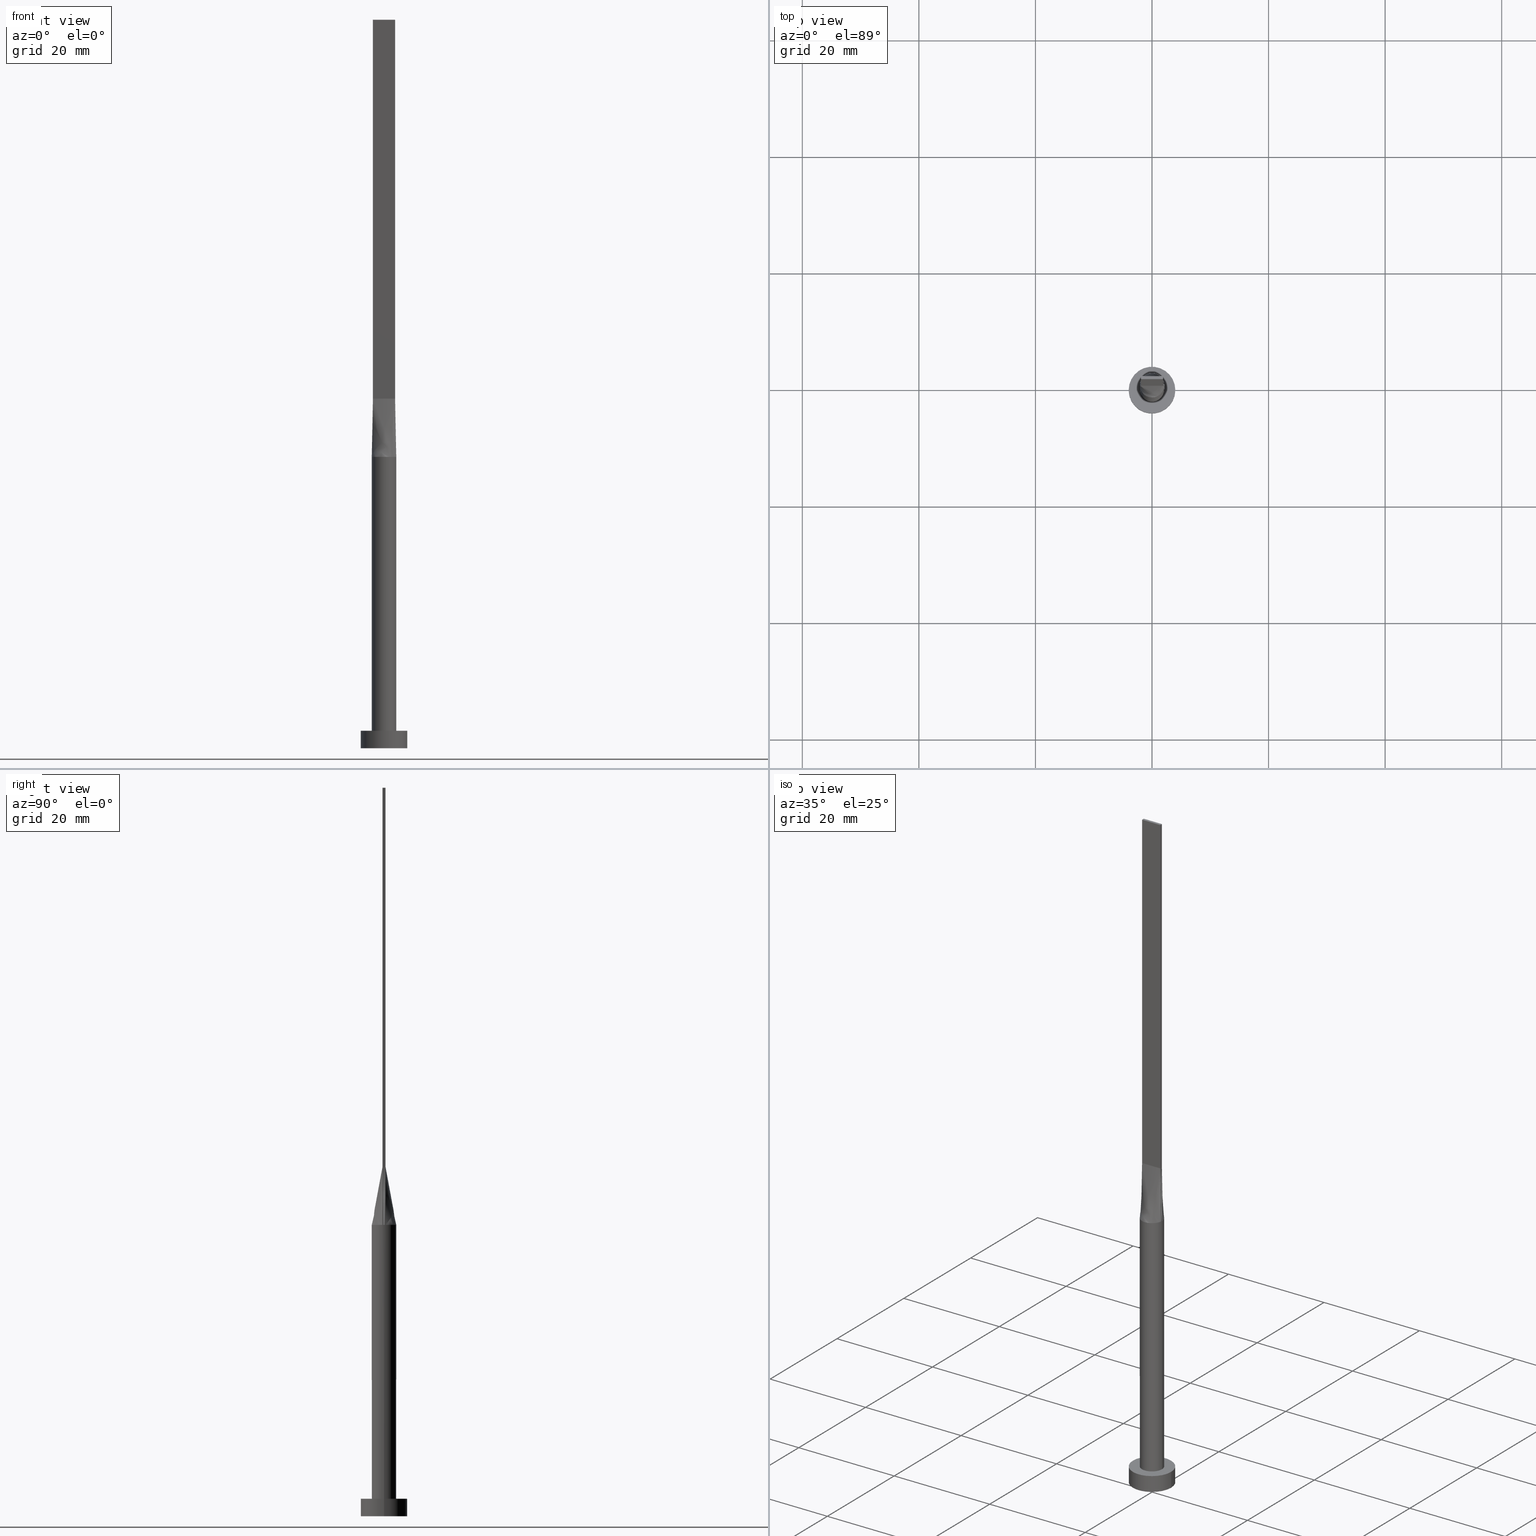
[diagram: canonical four-view strip — front | top / right | iso, engineering-drawing reading convention]
A machine part, canonical four-view strip (front | top / right | iso — engineering-drawing reading convention). The complete STEP part file that produces these views, byte-faithful:
ISO-10303-21;
HEADER;
FILE_DESCRIPTION (( 'STEP AP203' ),
    '1' );
FILE_NAME ('ba8a.STEP',
    '2026-02-12T09:05:40',
    ( '' ),
    ( '' ),
    'SwSTEP 2.0',
    'SolidWorks 2019',
    '' );
FILE_SCHEMA (( 'CONFIG_CONTROL_DESIGN' ));
ENDSEC;

DATA;
#1 = CARTESIAN_POINT ( 'NONE',  ( 2.013179673790353341, 0.6348343983169372207, 49.99999999999998579 ) ) ;
#2 = EDGE_CURVE ( 'NONE', #190, #438, #159, .T. ) ;
#3 = CARTESIAN_POINT ( 'NONE',  ( -1.719140910005030998, -1.233222546295087652, 49.99999999999999289 ) ) ;
#4 = ORIENTED_EDGE ( 'NONE', *, *, #545, .F. ) ;
#5 = CARTESIAN_POINT ( 'NONE',  ( -1.899999999999999689, 0.08333333333333366177, 60.00000000000000000 ) ) ;
#6 = CARTESIAN_POINT ( 'NONE',  ( 1.144666002056101028, -1.784802689656028507, 50.00000000000000000 ) ) ;
#7 = DIRECTION ( 'NONE',  ( -0.000000000000000000, -0.000000000000000000, -1.000000000000000000 ) ) ;
#8 = CARTESIAN_POINT ( 'NONE',  ( -1.899999999999999911, -0.2499999999999995837, 60.00000000000000711 ) ) ;
#9 = ADVANCED_FACE ( 'NONE', ( #566 ), #49, .T. ) ;
#10 = ORIENTED_EDGE ( 'NONE', *, *, #102, .T. ) ;
#11 = CIRCLE ( 'NONE', #335, 4.000000000000000000 ) ;
#12 = FACE_OUTER_BOUND ( 'NONE', #434, .T. ) ;
#13 = ORIENTED_EDGE ( 'NONE', *, *, #182, .F. ) ;
#14 = LINE ( 'NONE', #547, #454 ) ;
#15 = DIRECTION ( 'NONE',  ( 1.734723475976807094E-15, 1.000000000000000000, 0.000000000000000000 ) ) ;
#16 = CARTESIAN_POINT ( 'NONE',  ( 1.719140910005030110, 1.233222546295088762, 49.99999999999999289 ) ) ;
#17 = CARTESIAN_POINT ( 'NONE',  ( 1.899999999999999911, 0.2500000000000002220, 125.0000000000000000 ) ) ;
#18 = CARTESIAN_POINT ( 'NONE',  ( 0.000000000000000000, 0.000000000000000000, 0.000000000000000000 ) ) ;
#19 = ORIENTED_EDGE ( 'NONE', *, *, #226, .T. ) ;
#20 = DIRECTION ( 'NONE',  ( 0.000000000000000000, -1.000000000000000000, 0.000000000000000000 ) ) ;
#21 = CARTESIAN_POINT ( 'NONE',  ( -2.082054020639342529, 0.2739544763999127719, 50.00000000000000000 ) ) ;
#22 = AXIS2_PLACEMENT_3D ( 'NONE', #72, #562, #113 ) ;
#23 = CARTESIAN_POINT ( 'NONE',  ( -1.899999999999999911, -0.2499999999999995837, 125.0000000000000000 ) ) ;
#24 = CARTESIAN_POINT ( 'NONE',  ( 1.899999999999999689, -0.1666666666666664631, 60.00000000000000000 ) ) ;
#25 = DIRECTION ( 'NONE',  ( -0.000000000000000000, -0.000000000000000000, -1.000000000000000000 ) ) ;
#26 = CARTESIAN_POINT ( 'NONE',  ( -1.719140910005030554, 1.233222546295088762, 49.99999999999997868 ) ) ;
#27 = DIRECTION ( 'NONE',  ( -1.000000000000000000, 5.706327223607920020E-17, 0.000000000000000000 ) ) ;
#28 = ADVANCED_FACE ( 'NONE', ( #581 ), #273, .T. ) ;
#29 = APPLICATION_PROTOCOL_DEFINITION ( 'international standard', 'config_control_design', 1994, #321 ) ;
#30 = VERTEX_POINT ( 'NONE', #291 ) ;
#31 = ORIENTED_EDGE ( 'NONE', *, *, #406, .F. ) ;
#32 = VERTEX_POINT ( 'NONE', #65 ) ;
#33 = DATE_AND_TIME ( #433, #533 ) ;
#34 = EDGE_CURVE ( 'NONE', #30, #196, #395, .T. ) ;
#35 = ORIENTED_EDGE ( 'NONE', *, *, #34, .T. ) ;
#36 = ORIENTED_EDGE ( 'NONE', *, *, #455, .F. ) ;
#37 = CARTESIAN_POINT ( 'NONE',  ( -2.093966886534509353, 0.1834166955966458346, 50.00000000000000000 ) ) ;
#38 = CC_DESIGN_PERSON_AND_ORGANIZATION_ASSIGNMENT ( #162, #569, ( #279 ) ) ;
#39 = ORGANIZATION ( 'NEUR�EN�', 'NEUR�EN�', '' ) ;
#40 = VERTEX_POINT ( 'NONE', #68 ) ;
#41 = CARTESIAN_POINT ( 'NONE',  ( -1.583333333333332371, -0.2499999999999995837, 60.00000000000000000 ) ) ;
#42 = VECTOR ( 'NONE', #466, 1000.000000000000000 ) ;
#43 = DATE_TIME_ROLE ( 'classification_date' ) ;
#44 = ORIENTED_EDGE ( 'NONE', *, *, #500, .F. ) ;
#45 = CARTESIAN_POINT ( 'NONE',  ( 2.082054020639342085, -0.2739544763999143262, 50.00000000000000000 ) ) ;
#46 = CARTESIAN_POINT ( 'NONE',  ( -2.099923319482092765, 0.09170834779832304218, 50.00000000000000000 ) ) ;
#47 = ORIENTED_EDGE ( 'NONE', *, *, #184, .T. ) ;
#48 = AXIS2_PLACEMENT_3D ( 'NONE', #209, #254, #504 ) ;
#49 = B_SPLINE_SURFACE_WITH_KNOTS ( 'NONE', 3, 1, ( 
 ( #525, #311 ),
 ( #478, #83 ),
 ( #439, #41 ),
 ( #231, #490 ),
 ( #3, #539 ),
 ( #96, #404 ),
 ( #137, #234 ),
 ( #52, #86 ),
 ( #93, #495 ),
 ( #398, #444 ),
 ( #320, #100 ),
 ( #6, #236 ),
 ( #449, #269 ),
 ( #272, #55 ),
 ( #488, #447 ),
 ( #229, #192 ),
 ( #537, #271 ),
 ( #45, #409 ) ),
 .UNSPECIFIED., .F., .F., .F.,
 ( 4, 2, 2, 2, 2, 2, 2, 2, 4 ),
 ( 2, 2 ),
 ( 0.000000000000000000, 0.1249999999999999722, 0.2500000000000000000, 0.3750000000000000000, 0.5000000000000000000, 0.6250000000000001110, 0.7500000000000000000, 0.8750000000000000000, 1.000000000000000000 ),
 ( 0.000000000000000000, 1.000000000000000000 ),
 .UNSPECIFIED. ) ;
#50 = EDGE_LOOP ( 'NONE', ( #203, #164, #151, #130, #427, #396 ) ) ;
#51 = VECTOR ( 'NONE', #551, 1000.000000000000000 ) ;
#52 = CARTESIAN_POINT ( 'NONE',  ( -0.6126365619873365143, -2.029890967560283865, 49.99999999999999289 ) ) ;
#53 = CARTESIAN_POINT ( 'NONE',  ( -1.899999999999999911, 0.2500000000000002220, 60.00000000000000711 ) ) ;
#54 = CARTESIAN_POINT ( 'NONE',  ( -2.082054020639342529, -0.2739544763999126609, 50.00000000000000000 ) ) ;
#55 = CARTESIAN_POINT ( 'NONE',  ( 1.108333333333334059, -0.2499999999999996669, 60.00000000000000000 ) ) ;
#56 = EDGE_CURVE ( 'NONE', #443, #295, #288, .T. ) ;
#57 = CARTESIAN_POINT ( 'NONE',  ( 0.000000000000000000, 0.000000000000000000, 50.00000000000000000 ) ) ;
#58 = AXIS2_PLACEMENT_3D ( 'NONE', #358, #237, #496 ) ;
#59 = DIRECTION ( 'NONE',  ( 1.000000000000000000, 0.000000000000000000, 0.000000000000000000 ) ) ;
#60 = CARTESIAN_POINT ( 'NONE',  ( 2.082200219287980492, 0.2739732417105839035, 50.00000000000000000 ) ) ;
#61 = ORIENTED_EDGE ( 'NONE', *, *, #455, .T. ) ;
#62 = CARTESIAN_POINT ( 'NONE',  ( -1.266666666666667718, 0.2500000000000002220, 60.00000000000000000 ) ) ;
#63 = LINE ( 'NONE', #513, #561 ) ;
#64 = EDGE_LOOP ( 'NONE', ( #482, #470, #163, #94 ) ) ;
#65 = CARTESIAN_POINT ( 'NONE',  ( -1.899999999999999911, -0.2499999999999995837, 60.00000000000000711 ) ) ;
#66 = AXIS2_PLACEMENT_3D ( 'NONE', #349, #420, #384 ) ;
#67 = PLANE ( 'NONE',  #48 ) ;
#68 = CARTESIAN_POINT ( 'NONE',  ( 1.899999999999999911, 0.2500000000000002220, 60.00000000000000711 ) ) ;
#69 = CARTESIAN_POINT ( 'NONE',  ( -1.144666002056102361, 1.784802689656027619, 50.00000000000000711 ) ) ;
#70 = DIRECTION ( 'NONE',  ( 0.000000000000000000, 0.000000000000000000, 1.000000000000000000 ) ) ;
#71 = ADVANCED_FACE ( 'NONE', ( #257 ), #148, .F. ) ;
#72 = CARTESIAN_POINT ( 'NONE',  ( 0.000000000000000000, 0.000000000000000000, 50.00000000000000000 ) ) ;
#73 = CARTESIAN_POINT ( 'NONE',  ( 0.6126365619873356261, 2.029890967560284754, 50.00000000000001421 ) ) ;
#74 = LINE ( 'NONE', #375, #535 ) ;
#75 = ORIENTED_EDGE ( 'NONE', *, *, #325, .T. ) ;
#76 = APPROVAL_STATUS ( 'not_yet_approved' ) ;
#77 = ORIENTED_EDGE ( 'NONE', *, *, #115, .F. ) ;
#78 = VECTOR ( 'NONE', #492, 1000.000000000000000 ) ;
#79 = APPROVAL_STATUS ( 'not_yet_approved' ) ;
#80 = ORIENTED_EDGE ( 'NONE', *, *, #461, .T. ) ;
#81 = APPROVAL_ROLE ( '' ) ;
#82 = ORIENTED_EDGE ( 'NONE', *, *, #184, .F. ) ;
#83 = CARTESIAN_POINT ( 'NONE',  ( -1.741666666666666252, -0.2499999999999995837, 60.00000000000000000 ) ) ;
#84 =( NAMED_UNIT ( * ) PLANE_ANGLE_UNIT ( ) SI_UNIT ( $, .RADIAN. ) );
#85 = ORIENTED_EDGE ( 'NONE', *, *, #423, .T. ) ;
#86 = CARTESIAN_POINT ( 'NONE',  ( -0.3166666666666646535, -0.2499999999999995837, 60.00000000000000000 ) ) ;
#87 = AXIS2_PLACEMENT_3D ( 'NONE', #235, #450, #363 ) ;
#88 = CARTESIAN_POINT ( 'NONE',  ( -0.3069641454662043190, 2.100000000000000533, 50.00000000000001421 ) ) ;
#89 = APPROVAL_ROLE ( '' ) ;
#90 = ADVANCED_FACE ( 'NONE', ( #330 ), #340, .F. ) ;
#91 = CARTESIAN_POINT ( 'NONE',  ( -0.1583333333333351578, 0.2500000000000002220, 60.00000000000000000 ) ) ;
#92 = CARTESIAN_POINT ( 'NONE',  ( 1.899999999999999911, 0.2500000000000002220, 60.00000000000000711 ) ) ;
#93 = CARTESIAN_POINT ( 'NONE',  ( -0.3069641454662052071, -2.100000000000000089, 50.00000000000000711 ) ) ;
#94 = ORIENTED_EDGE ( 'NONE', *, *, #338, .T. ) ;
#95 = DIRECTION ( 'NONE',  ( 1.000000000000000000, -5.706327223607918787E-17, 0.000000000000000000 ) ) ;
#96 = CARTESIAN_POINT ( 'NONE',  ( -1.370324685961210820, -1.611984358543462337, 50.00000000000000711 ) ) ;
#97 = VECTOR ( 'NONE', #233, 1000.000000000000000 ) ;
#98 = ADVANCED_FACE ( 'NONE', ( #515 ), #331, .F. ) ;
#99 = CARTESIAN_POINT ( 'NONE',  ( -4.000000000000000000, 0.000000000000000000, 3.000000000000000000 ) ) ;
#100 = CARTESIAN_POINT ( 'NONE',  ( 0.3166666666666686503, -0.2499999999999996669, 60.00000000000000000 ) ) ;
#101 = CYLINDRICAL_SURFACE ( 'NONE', #329, 2.100000000000000089 ) ;
#102 = EDGE_CURVE ( 'NONE', #295, #40, #471, .T. ) ;
#103 = LINE ( 'NONE', #145, #403 ) ;
#104 = CIRCLE ( 'NONE', #193, 2.100000000000000089 ) ;
#105 = PRODUCT ( 'ba8a', 'ba8a', '', ( #299 ) ) ;
#106 = CARTESIAN_POINT ( 'NONE',  ( 2.100000000000000089, 2.571758278209441957E-16, 3.000000000000000000 ) ) ;
#107 = DIRECTION ( 'NONE',  ( 0.000000000000000000, 0.000000000000000000, 1.000000000000000000 ) ) ;
#108 =( LENGTH_UNIT ( ) NAMED_UNIT ( * ) SI_UNIT ( .MILLI., .METRE. ) );
#109 = ORIENTED_EDGE ( 'NONE', *, *, #198, .F. ) ;
#110 = CARTESIAN_POINT ( 'NONE',  ( -2.013179673790353341, 0.6348343983169374427, 49.99999999999999289 ) ) ;
#111 = FACE_OUTER_BOUND ( 'NONE', #346, .T. ) ;
#112 = CC_DESIGN_APPROVAL ( #253, ( #279 ) ) ;
#113 = DIRECTION ( 'NONE',  ( 1.000000000000000000, 0.000000000000000000, 0.000000000000000000 ) ) ;
#114 = VECTOR ( 'NONE', #290, 1000.000000000000000 ) ;
#115 = EDGE_CURVE ( 'NONE', #438, #40, #170, .T. ) ;
#116 = DIRECTION ( 'NONE',  ( 5.706327223607920020E-17, 1.000000000000000000, -0.000000000000000000 ) ) ;
#117 = DIRECTION ( 'NONE',  ( -0.000000000000000000, -0.000000000000000000, -1.000000000000000000 ) ) ;
#118 = VERTEX_POINT ( 'NONE', #389 ) ;
#119 = DATE_AND_TIME ( #166, #221 ) ;
#120 = EDGE_LOOP ( 'NONE', ( #125, #80, #44, #77 ) ) ;
#121 = ORIENTED_EDGE ( 'NONE', *, *, #102, .F. ) ;
#122 = CC_DESIGN_SECURITY_CLASSIFICATION ( #238, ( #402 ) ) ;
#123 = PERSON_AND_ORGANIZATION ( #540, #39 ) ;
#124 = CIRCLE ( 'NONE', #58, 4.000000000000000000 ) ;
#125 = ORIENTED_EDGE ( 'NONE', *, *, #376, .T. ) ;
#126 = CARTESIAN_POINT ( 'NONE',  ( 1.899999999999999911, -0.2499999999999997780, 60.00000000000000711 ) ) ;
#127 = APPROVAL_DATE_TIME ( #33, #408 ) ;
#128 = CARTESIAN_POINT ( 'NONE',  ( 0.000000000000000000, 0.000000000000000000, 125.0000000000000000 ) ) ;
#129 = PERSON_AND_ORGANIZATION ( #540, #39 ) ;
#130 = ORIENTED_EDGE ( 'NONE', *, *, #133, .F. ) ;
#131 = CALENDAR_DATE ( 2026, 12, 2 ) ;
#132 = APPROVAL_PERSON_ORGANIZATION ( #564, #464, #519 ) ;
#133 = EDGE_CURVE ( 'NONE', #196, #520, #483, .T. ) ;
#134 = AXIS2_PLACEMENT_3D ( 'NONE', #368, #476, #301 ) ;
#135 = CARTESIAN_POINT ( 'NONE',  ( -4.000000000000000000, 0.000000000000000000, 0.000000000000000000 ) ) ;
#136 = CARTESIAN_POINT ( 'NONE',  ( -1.899999999999999689, -0.1666666666666662411, 60.00000000000000000 ) ) ;
#137 = CARTESIAN_POINT ( 'NONE',  ( -1.144666002056103249, -1.784802689656026953, 50.00000000000000000 ) ) ;
#138 = ADVANCED_FACE ( 'NONE', ( #212 ), #187, .T. ) ;
#139 = ADVANCED_FACE ( 'NONE', ( #487 ), #577, .T. ) ;
#140 = ORIENTED_EDGE ( 'NONE', *, *, #56, .F. ) ;
#141 = CARTESIAN_POINT ( 'NONE',  ( -1.899999999999999911, 0.2500000000000002220, 125.0000000000000000 ) ) ;
#142 = CARTESIAN_POINT ( 'NONE',  ( 0.000000000000000000, 0.000000000000000000, 50.00000000000000000 ) ) ;
#143 = PLANE ( 'NONE',  #213 ) ;
#144 = CARTESIAN_POINT ( 'NONE',  ( -1.899999999999999911, 0.2500000000000002220, 125.0000000000000000 ) ) ;
#145 = CARTESIAN_POINT ( 'NONE',  ( 1.899999999999999023, -0.2499999999999997780, 125.0000000000000000 ) ) ;
#146 = CARTESIAN_POINT ( 'NONE',  ( -1.899999999999999689, -0.08333333333333294013, 60.00000000000000000 ) ) ;
#147 = DIRECTION ( 'NONE',  ( -1.000000000000000000, -0.000000000000000000, -0.000000000000000000 ) ) ;
#148 = PLANE ( 'NONE',  #175 ) ;
#149 = CIRCLE ( 'NONE', #281, 2.100000000000000089 ) ;
#150 = DIRECTION ( 'NONE',  ( 0.000000000000000000, 0.000000000000000000, 1.000000000000000000 ) ) ;
#151 = ORIENTED_EDGE ( 'NONE', *, *, #325, .F. ) ;
#152 = DIRECTION ( 'NONE',  ( 0.000000000000000000, -0.000000000000000000, -1.000000000000000000 ) ) ;
#153 = CARTESIAN_POINT ( 'NONE',  ( 0.000000000000000000, 0.000000000000000000, 0.000000000000000000 ) ) ;
#154 = CARTESIAN_POINT ( 'NONE',  ( 1.899999999999999911, 0.2500000000000002220, 125.0000000000000000 ) ) ;
#155 = DIRECTION ( 'NONE',  ( 0.000000000000000000, 0.000000000000000000, 1.000000000000000000 ) ) ;
#156 = ADVANCED_FACE ( 'NONE', ( #526 ), #399, .T. ) ;
#157 = CARTESIAN_POINT ( 'NONE',  ( 2.099923319482092765, 0.09170834779832297279, 50.00000000000000000 ) ) ;
#158 = DIRECTION ( 'NONE',  ( 0.000000000000000000, 0.000000000000000000, 1.000000000000000000 ) ) ;
#159 = CIRCLE ( 'NONE', #66, 2.100000000000000089 ) ;
#160 = DIRECTION ( 'NONE',  ( -1.000000000000000000, 0.000000000000000000, 0.000000000000000000 ) ) ;
#161 = DIRECTION ( 'NONE',  ( 1.000000000000000000, 0.000000000000000000, -0.000000000000000000 ) ) ;
#162 = PERSON_AND_ORGANIZATION ( #540, #39 ) ;
#163 = ORIENTED_EDGE ( 'NONE', *, *, #406, .T. ) ;
#164 = ORIENTED_EDGE ( 'NONE', *, *, #350, .F. ) ;
#165 = CYLINDRICAL_SURFACE ( 'NONE', #361, 2.100000000000000089 ) ;
#166 = CALENDAR_DATE ( 2026, 12, 2 ) ;
#167 = ORIENTED_EDGE ( 'NONE', *, *, #563, .F. ) ;
#168 = VERTEX_POINT ( 'NONE', #498 ) ;
#169 = LOCAL_TIME ( 10, 5, 40.00000000000000000, #304 ) ;
#170 = LINE ( 'NONE', #219, #553 ) ;
#171 = CARTESIAN_POINT ( 'NONE',  ( -1.370324685961209266, 1.611984358543462559, 50.00000000000000000 ) ) ;
#172 = ADVANCED_BREP_SHAPE_REPRESENTATION ( 'ba8a', ( #479, #543 ), #360 ) ;
#173 = PERSON_AND_ORGANIZATION ( #540, #39 ) ;
#174 = ORIENTED_EDGE ( 'NONE', *, *, #278, .T. ) ;
#175 = AXIS2_PLACEMENT_3D ( 'NONE', #557, #161, #297 ) ;
#176 = CARTESIAN_POINT ( 'NONE',  ( -1.899999999999999689, 0.1666666666666669350, 60.00000000000000000 ) ) ;
#177 = DIRECTION ( 'NONE',  ( -1.000000000000000000, 0.000000000000000000, 0.000000000000000000 ) ) ;
#178 = APPROVAL_DATE_TIME ( #531, #464 ) ;
#179 = EDGE_LOOP ( 'NONE', ( #19, #473 ) ) ;
#180 = ORIENTED_EDGE ( 'NONE', *, *, #240, .T. ) ;
#181 = CARTESIAN_POINT ( 'NONE',  ( 0.1583333333333314663, 0.2500000000000002220, 60.00000000000000000 ) ) ;
#182 = EDGE_CURVE ( 'NONE', #458, #32, #191, .T. ) ;
#183 = CARTESIAN_POINT ( 'NONE',  ( 2.082054020639342529, 0.2739544763999133825, 50.00000000000000000 ) ) ;
#184 = EDGE_CURVE ( 'NONE', #300, #251, #14, .T. ) ;
#185 = CC_DESIGN_APPROVAL ( #464, ( #402 ) ) ;
#186 = CARTESIAN_POINT ( 'NONE',  ( 1.583333333333331927, 0.2500000000000002220, 60.00000000000000711 ) ) ;
#187 = B_SPLINE_SURFACE_WITH_KNOTS ( 'NONE', 3, 1, ( 
 ( #522, #126 ),
 ( #307, #24 ),
 ( #206, #374 ),
 ( #157, #436 ),
 ( #264, #222 ),
 ( #317, #92 ) ),
 .UNSPECIFIED., .F., .F., .F.,
 ( 4, 2, 4 ),
 ( 2, 2 ),
 ( 0.000000000000000000, 0.5000000000000000000, 1.000000000000000000 ),
 ( 0.000000000000000000, 1.000000000000000000 ),
 .UNSPECIFIED. ) ;
#188 = AXIS2_PLACEMENT_3D ( 'NONE', #372, #116, #27 ) ;
#189 = CARTESIAN_POINT ( 'NONE',  ( 2.059419575438525385, 0.4459762599261217764, 50.00000000000000711 ) ) ;
#190 = VERTEX_POINT ( 'NONE', #544 ) ;
#191 = LINE ( 'NONE', #53, #97 ) ;
#192 = CARTESIAN_POINT ( 'NONE',  ( 1.583333333333333037, -0.2499999999999997224, 60.00000000000000000 ) ) ;
#193 = AXIS2_PLACEMENT_3D ( 'NONE', #256, #70, #508 ) ;
#194 = PRODUCT_DEFINITION_SHAPE ( 'NONE', 'NONE',  #279 ) ;
#195 = DIRECTION ( 'NONE',  ( -0.000000000000000000, -0.000000000000000000, -1.000000000000000000 ) ) ;
#196 = VERTEX_POINT ( 'NONE', #275 ) ;
#197 = DIRECTION ( 'NONE',  ( 1.000000000000000000, -2.131628207280300558E-14, 0.000000000000000000 ) ) ;
#198 = EDGE_CURVE ( 'NONE', #514, #300, #274, .T. ) ;
#199 = LINE ( 'NONE', #154, #452 ) ;
#200 = CARTESIAN_POINT ( 'NONE',  ( 1.899999999999999023, -0.2499999999999997780, 125.0000000000000000 ) ) ;
#201 = CARTESIAN_POINT ( 'NONE',  ( -2.059419575438525385, 0.4459762599261216653, 50.00000000000000711 ) ) ;
#202 = CARTESIAN_POINT ( 'NONE',  ( 0.000000000000000000, 0.000000000000000000, 3.000000000000000000 ) ) ;
#203 = ORIENTED_EDGE ( 'NONE', *, *, #423, .F. ) ;
#204 = DIRECTION ( 'NONE',  ( 1.000000000000000000, 0.000000000000000000, 0.000000000000000000 ) ) ;
#205 = EDGE_CURVE ( 'NONE', #118, #295, #103, .T. ) ;
#206 = CARTESIAN_POINT ( 'NONE',  ( 2.099923319482092765, -0.09170834779832345851, 50.00000000000000000 ) ) ;
#207 = CARTESIAN_POINT ( 'NONE',  ( -1.991027010319671220, 0.2619772381999564970, 55.00000000000000711 ) ) ;
#208 = DIRECTION ( 'NONE',  ( -0.000000000000000000, 1.000000000000000000, -0.000000000000000000 ) ) ;
#209 = CARTESIAN_POINT ( 'NONE',  ( 0.000000000000000000, 0.000000000000000000, 3.000000000000000000 ) ) ;
#210 = CC_DESIGN_APPROVAL ( #408, ( #238 ) ) ;
#211 = CARTESIAN_POINT ( 'NONE',  ( -1.108333333333334503, 0.2500000000000002220, 60.00000000000000000 ) ) ;
#212 = FACE_OUTER_BOUND ( 'NONE', #220, .T. ) ;
#213 = AXIS2_PLACEMENT_3D ( 'NONE', #499, #20, #152 ) ;
#214 = CARTESIAN_POINT ( 'NONE',  ( 0.000000000000000000, 0.000000000000000000, 0.000000000000000000 ) ) ;
#215 = ORIENTED_EDGE ( 'NONE', *, *, #500, .T. ) ;
#216 = PERSON_AND_ORGANIZATION ( #540, #39 ) ;
#217 = ORIENTED_EDGE ( 'NONE', *, *, #2, .F. ) ;
#218 = ORIENTED_EDGE ( 'NONE', *, *, #2, .T. ) ;
#219 = CARTESIAN_POINT ( 'NONE',  ( 1.991027010319671220, 0.2619772381999570521, 55.00000000000000711 ) ) ;
#220 = EDGE_LOOP ( 'NONE', ( #501, #218, #565, #121, #140 ) ) ;
#221 = LOCAL_TIME ( 10, 5, 40.00000000000000000, #267 ) ;
#222 = CARTESIAN_POINT ( 'NONE',  ( 1.899999999999999689, 0.1666666666666668517, 60.00000000000000000 ) ) ;
#223 = CARTESIAN_POINT ( 'NONE',  ( -1.843490440271193798, 1.028323931880310349, 50.00000000000000000 ) ) ;
#224 = ORIENTED_EDGE ( 'NONE', *, *, #308, .T. ) ;
#225 = AXIS2_PLACEMENT_3D ( 'NONE', #128, #354, #313 ) ;
#226 = EDGE_CURVE ( 'NONE', #300, #514, #124, .T. ) ;
#227 = PERSON_AND_ORGANIZATION_ROLE ( 'classification_officer' ) ;
#228 = ORIENTED_EDGE ( 'NONE', *, *, #445, .F. ) ;
#229 = CARTESIAN_POINT ( 'NONE',  ( 2.013179673790352897, -0.6348343983169382199, 49.99999999999997868 ) ) ;
#230 = CC_DESIGN_PERSON_AND_ORGANIZATION_ASSIGNMENT ( #216, #314, ( #105 ) ) ;
#231 = CARTESIAN_POINT ( 'NONE',  ( -1.843490440271193354, -1.028323931880309461, 49.99999999999997158 ) ) ;
#232 = CIRCLE ( 'NONE', #503, 2.100000000000000089 ) ;
#233 = DIRECTION ( 'NONE',  ( 0.000000000000000000, -1.000000000000000000, 0.000000000000000000 ) ) ;
#234 = CARTESIAN_POINT ( 'NONE',  ( -0.6333333333333313053, -0.2499999999999995837, 60.00000000000000000 ) ) ;
#235 = CARTESIAN_POINT ( 'NONE',  ( 0.000000000000000000, 0.000000000000000000, 3.000000000000000000 ) ) ;
#236 = CARTESIAN_POINT ( 'NONE',  ( 0.6333333333333350801, -0.2499999999999996669, 60.00000000000000000 ) ) ;
#237 = DIRECTION ( 'NONE',  ( 0.000000000000000000, 0.000000000000000000, 1.000000000000000000 ) ) ;
#238 = SECURITY_CLASSIFICATION ( '', '', #397 ) ;
#239 = VECTOR ( 'NONE', #451, 1000.000000000000000 ) ;
#240 = EDGE_CURVE ( 'NONE', #383, #458, #541, .T. ) ;
#241 = DIRECTION ( 'NONE',  ( 0.000000000000000000, 0.000000000000000000, 1.000000000000000000 ) ) ;
#242 = PRODUCT_RELATED_PRODUCT_CATEGORY ( 'detail', '', ( #105 ) ) ;
#243 = CARTESIAN_POINT ( 'NONE',  ( 0.000000000000000000, 0.000000000000000000, 3.000000000000000000 ) ) ;
#244 = CARTESIAN_POINT ( 'NONE',  ( -1.899999999999999911, -0.2499999999999995837, 125.0000000000000000 ) ) ;
#245 = ORIENTED_EDGE ( 'NONE', *, *, #576, .F. ) ;
#246 = CARTESIAN_POINT ( 'NONE',  ( 2.082200219287980492, 0.2739732417105839035, 50.00000000000000000 ) ) ;
#247 = CARTESIAN_POINT ( 'NONE',  ( -1.370324685961209266, 1.611984358543462559, 50.00000000000000000 ) ) ;
#248 = ADVANCED_FACE ( 'NONE', ( #276 ), #101, .T. ) ;
#249 = DIRECTION ( 'NONE',  ( -0.000000000000000000, -0.000000000000000000, -1.000000000000000000 ) ) ;
#250 = APPROVAL_PERSON_ORGANIZATION ( #319, #408, #89 ) ;
#251 = VERTEX_POINT ( 'NONE', #135 ) ;
#252 = VECTOR ( 'NONE', #285, 1000.000000000000000 ) ;
#253 = APPROVAL ( #76, 'NEUR�EN�' ) ;
#254 = DIRECTION ( 'NONE',  ( 0.000000000000000000, 0.000000000000000000, 1.000000000000000000 ) ) ;
#255 = CARTESIAN_POINT ( 'NONE',  ( -1.719140910005030554, 1.233222546295088762, 49.99999999999997868 ) ) ;
#256 = CARTESIAN_POINT ( 'NONE',  ( 0.000000000000000000, 0.000000000000000000, 3.000000000000000000 ) ) ;
#257 = FACE_OUTER_BOUND ( 'NONE', #469, .T. ) ;
#258 = DIRECTION ( 'NONE',  ( -1.000000000000000000, 0.000000000000000000, 0.000000000000000000 ) ) ;
#259 = AXIS2_PLACEMENT_3D ( 'NONE', #202, #550, #258 ) ;
#260 = ORIENTED_EDGE ( 'NONE', *, *, #376, .F. ) ;
#261 = ORIENTED_EDGE ( 'NONE', *, *, #34, .F. ) ;
#262 = COORDINATED_UNIVERSAL_TIME_OFFSET ( 1, 0, .AHEAD. ) ;
#263 = ADVANCED_FACE ( 'NONE', ( #536 ), #265, .T. ) ;
#264 = CARTESIAN_POINT ( 'NONE',  ( 2.093966886534508909, 0.1834166955966461954, 50.00000000000000000 ) ) ;
#265 = B_SPLINE_SURFACE_WITH_KNOTS ( 'NONE', 3, 1, ( 
 ( #316, #475 ),
 ( #37, #176 ),
 ( #46, #5 ),
 ( #412, #146 ),
 ( #549, #136 ),
 ( #54, #323 ) ),
 .UNSPECIFIED., .F., .F., .F.,
 ( 4, 2, 4 ),
 ( 2, 2 ),
 ( 0.000000000000000000, 0.5000000000000000000, 1.000000000000000000 ),
 ( 0.000000000000000000, 1.000000000000000000 ),
 .UNSPECIFIED. ) ;
#266 = VECTOR ( 'NONE', #425, 1000.000000000000114 ) ;
#267 = COORDINATED_UNIVERSAL_TIME_OFFSET ( 1, 0, .AHEAD. ) ;
#268 = EDGE_LOOP ( 'NONE', ( #75, #477, #352, #174 ) ) ;
#269 = CARTESIAN_POINT ( 'NONE',  ( 0.7916666666666680729, -0.2499999999999996669, 60.00000000000000000 ) ) ;
#270 = CARTESIAN_POINT ( 'NONE',  ( 0.000000000000000000, 0.000000000000000000, 3.000000000000000000 ) ) ;
#271 = CARTESIAN_POINT ( 'NONE',  ( 1.741666666666666030, -0.2499999999999997780, 60.00000000000000000 ) ) ;
#272 = CARTESIAN_POINT ( 'NONE',  ( 1.719140910005029443, -1.233222546295088984, 50.00000000000000711 ) ) ;
#273 = B_SPLINE_SURFACE_WITH_KNOTS ( 'NONE', 3, 1, ( 
 ( #183, #353 ),
 ( #532, #486 ),
 ( #1, #186 ),
 ( #357, #502 ),
 ( #16, #277 ),
 ( #280, #283 ),
 ( #365, #534 ),
 ( #388, #521 ),
 ( #312, #181 ),
 ( #88, #91 ),
 ( #401, #467 ),
 ( #509, #382 ),
 ( #247, #459 ),
 ( #26, #211 ),
 ( #333, #62 ),
 ( #110, #512 ),
 ( #201, #460 ),
 ( #21, #373 ) ),
 .UNSPECIFIED., .F., .F., .F.,
 ( 4, 2, 2, 2, 2, 2, 2, 2, 4 ),
 ( 2, 2 ),
 ( 0.000000000000000000, 0.1250000000000000000, 0.2500000000000000000, 0.3750000000000000000, 0.5000000000000000000, 0.6250000000000000000, 0.7500000000000000000, 0.8750000000000000000, 1.000000000000000000 ),
 ( 0.000000000000000000, 1.000000000000000000 ),
 .UNSPECIFIED. ) ;
#274 = CIRCLE ( 'NONE', #87, 4.000000000000000000 ) ;
#275 = CARTESIAN_POINT ( 'NONE',  ( -2.099961659741046649, -5.286755615166558459E-16, 50.00000000000000000 ) ) ;
#276 = FACE_OUTER_BOUND ( 'NONE', #50, .T. ) ;
#277 = CARTESIAN_POINT ( 'NONE',  ( 1.108333333333331616, 0.2500000000000002220, 60.00000000000000000 ) ) ;
#278 = EDGE_CURVE ( 'NONE', #32, #520, #542, .T. ) ;
#279 = PRODUCT_DEFINITION ( 'NEZN�M�', '', #402, #394 ) ;
#280 = CARTESIAN_POINT ( 'NONE',  ( 1.370324685961209044, 1.611984358543462781, 49.99999999999998579 ) ) ;
#281 = AXIS2_PLACEMENT_3D ( 'NONE', #243, #334, #456 ) ;
#282 = LINE ( 'NONE', #200, #446 ) ;
#283 = CARTESIAN_POINT ( 'NONE',  ( 0.7916666666666649643, 0.2500000000000002220, 60.00000000000000000 ) ) ;
#284 = CARTESIAN_POINT ( 'NONE',  ( 4.000000000000000000, 4.898587196589412829E-16, 3.000000000000000000 ) ) ;
#285 = DIRECTION ( 'NONE',  ( 0.000000000000000000, -1.000000000000000000, 0.000000000000000000 ) ) ;
#286 = CARTESIAN_POINT ( 'NONE',  ( -1.899999999999999911, 0.2500000000000002220, 60.00000000000000711 ) ) ;
#287 = ORIENTED_EDGE ( 'NONE', *, *, #481, .F. ) ;
#288 = LINE ( 'NONE', #371, #441 ) ;
#289 = CARTESIAN_POINT ( 'NONE',  ( -2.082216547150284924, -0.2739753355370637133, 50.00000000000000000 ) ) ;
#290 = DIRECTION ( 'NONE',  ( -0.000000000000000000, -0.000000000000000000, -1.000000000000000000 ) ) ;
#291 = CARTESIAN_POINT ( 'NONE',  ( -2.082200117151096208, 0.2739731464735293276, 50.00000000000000000 ) ) ;
#292 = DIRECTION ( 'NONE',  ( 1.000000000000000000, 0.000000000000000000, 0.000000000000000000 ) ) ;
#293 = CARTESIAN_POINT ( 'NONE',  ( 2.082216499796571085, -0.2739752411676472654, 50.00000000000000000 ) ) ;
#294 = B_SPLINE_CURVE_WITH_KNOTS ( 'NONE', 3,
 ( #246, #189, #538, #568, #337, #465, #518, #73, #390, #302, #472, #69, #171, #255, #223, #424, #328, #457 ),
 .UNSPECIFIED., .F., .F.,
 ( 4, 2, 2, 2, 2, 2, 2, 2, 4 ),
 ( 0.000000000000000000, 0.1250000000000000000, 0.2500000000000000000, 0.3750000000000000000, 0.5000000000000000000, 0.6250000000000000000, 0.7500000000000000000, 0.8750000000000000000, 1.000000000000000000 ),
 .UNSPECIFIED. ) ;
#295 = VERTEX_POINT ( 'NONE', #494 ) ;
#296 = EDGE_CURVE ( 'NONE', #386, #32, #414, .T. ) ;
#297 = DIRECTION ( 'NONE',  ( -0.000000000000000000, 0.000000000000000000, -1.000000000000000000 ) ) ;
#298 = APPLICATION_CONTEXT ( 'configuration controlled 3d designs of mechanical parts and assemblies' ) ;
#299 = MECHANICAL_CONTEXT ( 'NONE', #321, 'mechanical' ) ;
#300 = VERTEX_POINT ( 'NONE', #99 ) ;
#301 = DIRECTION ( 'NONE',  ( -1.734723475976806897E-15, -1.000000000000000000, 0.000000000000000000 ) ) ;
#302 = CARTESIAN_POINT ( 'NONE',  ( -0.3069641454662043190, 2.100000000000000533, 50.00000000000001421 ) ) ;
#303 = AXIS2_PLACEMENT_3D ( 'NONE', #413, #107, #197 ) ;
#304 = COORDINATED_UNIVERSAL_TIME_OFFSET ( 1, 0, .AHEAD. ) ;
#305 = EDGE_LOOP ( 'NONE', ( #245, #287 ) ) ;
#306 = VERTEX_POINT ( 'NONE', #497 ) ;
#307 = CARTESIAN_POINT ( 'NONE',  ( 2.093966886534508909, -0.1834166955966466950, 50.00000000000000000 ) ) ;
#308 = EDGE_CURVE ( 'NONE', #32, #295, #448, .T. ) ;
#309 = SHAPE_DEFINITION_REPRESENTATION ( #194, #172 ) ;
#310 = ORIENTED_EDGE ( 'NONE', *, *, #182, .T. ) ;
#311 = CARTESIAN_POINT ( 'NONE',  ( -1.899999999999999911, -0.2499999999999995837, 60.00000000000000711 ) ) ;
#312 = CARTESIAN_POINT ( 'NONE',  ( 0.3069641454662044300, 2.100000000000000089, 50.00000000000000711 ) ) ;
#313 = DIRECTION ( 'NONE',  ( 1.000000000000000000, 0.000000000000000000, -0.000000000000000000 ) ) ;
#314 = PERSON_AND_ORGANIZATION_ROLE ( 'design_owner' ) ;
#315 = ORIENTED_EDGE ( 'NONE', *, *, #205, .T. ) ;
#316 = CARTESIAN_POINT ( 'NONE',  ( -2.082054020639342529, 0.2739544763999132160, 50.00000000000000000 ) ) ;
#317 = CARTESIAN_POINT ( 'NONE',  ( 2.082054020639342085, 0.2739544763999138266, 50.00000000000000000 ) ) ;
#318 = AXIS2_PLACEMENT_3D ( 'NONE', #153, #155, #505 ) ;
#319 = PERSON_AND_ORGANIZATION ( #540, #39 ) ;
#320 = CARTESIAN_POINT ( 'NONE',  ( 0.6126365619873340718, -2.029890967560283865, 49.99999999999999289 ) ) ;
#321 = APPLICATION_CONTEXT ( 'configuration controlled 3d designs of mechanical parts and assemblies' ) ;
#322 = ADVANCED_FACE ( 'NONE', ( #12 ), #143, .F. ) ;
#323 = CARTESIAN_POINT ( 'NONE',  ( -1.899999999999999911, -0.2499999999999995837, 60.00000000000000711 ) ) ;
#324 = DIRECTION ( 'NONE',  ( -1.000000000000000000, 0.000000000000000000, 0.000000000000000000 ) ) ;
#325 = EDGE_CURVE ( 'NONE', #520, #443, #232, .T. ) ;
#326 = ORIENTED_EDGE ( 'NONE', *, *, #205, .F. ) ;
#327 = CARTESIAN_POINT ( 'NONE',  ( 1.899999999999999911, 0.2500000000000002220, 125.0000000000000000 ) ) ;
#328 = CARTESIAN_POINT ( 'NONE',  ( -2.059419575438525385, 0.4459762599261216653, 50.00000000000000711 ) ) ;
#329 = AXIS2_PLACEMENT_3D ( 'NONE', #57, #411, #324 ) ;
#330 = FACE_OUTER_BOUND ( 'NONE', #305, .T. ) ;
#331 = PLANE ( 'NONE',  #134 ) ;
#332 = CARTESIAN_POINT ( 'NONE',  ( 2.100000000000000089, 2.571758278209441957E-16, 50.00000000000000000 ) ) ;
#333 = CARTESIAN_POINT ( 'NONE',  ( -1.843490440271193798, 1.028323931880310349, 50.00000000000000000 ) ) ;
#334 = DIRECTION ( 'NONE',  ( 0.000000000000000000, 0.000000000000000000, 1.000000000000000000 ) ) ;
#335 = AXIS2_PLACEMENT_3D ( 'NONE', #18, #158, #204 ) ;
#336 = CIRCLE ( 'NONE', #379, 4.000000000000000000 ) ;
#337 = CARTESIAN_POINT ( 'NONE',  ( 1.719140910005030110, 1.233222546295088762, 49.99999999999999289 ) ) ;
#338 = EDGE_CURVE ( 'NONE', #118, #529, #282, .T. ) ;
#339 = LINE ( 'NONE', #207, #266 ) ;
#340 = PLANE ( 'NONE',  #318 ) ;
#341 = CC_DESIGN_DATE_AND_TIME_ASSIGNMENT ( #119, #348, ( #279 ) ) ;
#342 = UNCERTAINTY_MEASURE_WITH_UNIT (LENGTH_MEASURE( 1.000000000000000082E-05 ), #108, 'distance_accuracy_value', 'NONE');
#343 = PERSON_AND_ORGANIZATION ( #540, #39 ) ;
#344 = EDGE_LOOP ( 'NONE', ( #524, #555, #47, #392 ) ) ;
#345 = APPROVAL_STATUS ( 'not_yet_approved' ) ;
#346 = EDGE_LOOP ( 'NONE', ( #109, #410, #575, #82 ) ) ;
#347 = ORIENTED_EDGE ( 'NONE', *, *, #133, .T. ) ;
#348 = DATE_TIME_ROLE ( 'creation_date' ) ;
#349 = CARTESIAN_POINT ( 'NONE',  ( 0.000000000000000000, 0.000000000000000000, 50.00000000000000000 ) ) ;
#350 = EDGE_CURVE ( 'NONE', #443, #190, #370, .T. ) ;
#351 = APPLICATION_PROTOCOL_DEFINITION ( 'international standard', 'config_control_design', 1994, #298 ) ;
#352 = ORIENTED_EDGE ( 'NONE', *, *, #308, .F. ) ;
#353 = CARTESIAN_POINT ( 'NONE',  ( 1.899999999999999023, 0.2500000000000002220, 60.00000000000000711 ) ) ;
#354 = DIRECTION ( 'NONE',  ( 0.000000000000000000, 0.000000000000000000, 1.000000000000000000 ) ) ;
#355 = VECTOR ( 'NONE', #95, 1000.000000000000000 ) ;
#356 = EDGE_CURVE ( 'NONE', #383, #386, #366, .T. ) ;
#357 = CARTESIAN_POINT ( 'NONE',  ( 1.843490440271194020, 1.028323931880309905, 49.99999999999998579 ) ) ;
#358 = CARTESIAN_POINT ( 'NONE',  ( 0.000000000000000000, 0.000000000000000000, 3.000000000000000000 ) ) ;
#359 = EDGE_CURVE ( 'NONE', #529, #383, #548, .T. ) ;
#360 =( GEOMETRIC_REPRESENTATION_CONTEXT ( 3 ) GLOBAL_UNCERTAINTY_ASSIGNED_CONTEXT ( ( #342 ) ) GLOBAL_UNIT_ASSIGNED_CONTEXT ( ( #108, #84, #573 ) ) REPRESENTATION_CONTEXT ( 'NONE', 'WORKASPACE' ) );
#361 = AXIS2_PLACEMENT_3D ( 'NONE', #558, #249, #160 ) ;
#362 = CC_DESIGN_DATE_AND_TIME_ASSIGNMENT ( #391, #43, ( #238 ) ) ;
#363 = DIRECTION ( 'NONE',  ( 1.000000000000000000, 0.000000000000000000, 0.000000000000000000 ) ) ;
#364 = CARTESIAN_POINT ( 'NONE',  ( -1.991027010319671220, -0.2619772381999561084, 55.00000000000000711 ) ) ;
#365 = CARTESIAN_POINT ( 'NONE',  ( 1.144666002056102583, 1.784802689656027397, 50.00000000000000000 ) ) ;
#366 = LINE ( 'NONE', #416, #252 ) ;
#367 = DIRECTION ( 'NONE',  ( 1.000000000000000000, 0.000000000000000000, 0.000000000000000000 ) ) ;
#368 = CARTESIAN_POINT ( 'NONE',  ( 1.899999999999999023, -0.2499999999999997780, 125.0000000000000000 ) ) ;
#369 = DIRECTION ( 'NONE',  ( -0.000000000000000000, -0.000000000000000000, -1.000000000000000000 ) ) ;
#370 = CIRCLE ( 'NONE', #303, 2.100000000000000089 ) ;
#371 = CARTESIAN_POINT ( 'NONE',  ( 1.991027010319670776, -0.2619772381999571076, 55.00000000000000711 ) ) ;
#372 = CARTESIAN_POINT ( 'NONE',  ( -1.899999999999999911, -0.2499999999999995837, 125.0000000000000000 ) ) ;
#373 = CARTESIAN_POINT ( 'NONE',  ( -1.899999999999999911, 0.2500000000000002220, 60.00000000000000711 ) ) ;
#374 = CARTESIAN_POINT ( 'NONE',  ( 1.899999999999999689, -0.08333333333333316217, 60.00000000000000000 ) ) ;
#375 = CARTESIAN_POINT ( 'NONE',  ( 4.000000000000000000, 4.898587196589412829E-16, 3.000000000000000000 ) ) ;
#376 = EDGE_CURVE ( 'NONE', #438, #30, #294, .T. ) ;
#377 = DIRECTION ( 'NONE',  ( -0.01820233363815264641, -0.002395043899756946811, 0.9998314552037476099 ) ) ;
#378 = CARTESIAN_POINT ( 'NONE',  ( -2.100000000000000089, 0.000000000000000000, 50.00000000000000000 ) ) ;
#379 = AXIS2_PLACEMENT_3D ( 'NONE', #559, #150, #367 ) ;
#380 = CC_DESIGN_PERSON_AND_ORGANIZATION_ASSIGNMENT ( #129, #442, ( #402 ) ) ;
#381 = AXIS2_PLACEMENT_3D ( 'NONE', #270, #484, #177 ) ;
#382 = CARTESIAN_POINT ( 'NONE',  ( -0.6333333333333349691, 0.2500000000000002220, 60.00000000000000000 ) ) ;
#383 = VERTEX_POINT ( 'NONE', #144 ) ;
#384 = DIRECTION ( 'NONE',  ( 1.000000000000000000, 0.000000000000000000, 0.000000000000000000 ) ) ;
#385 = APPROVAL_DATE_TIME ( #578, #253 ) ;
#386 = VERTEX_POINT ( 'NONE', #244 ) ;
#387 = ORIENTED_EDGE ( 'NONE', *, *, #296, .T. ) ;
#388 = CARTESIAN_POINT ( 'NONE',  ( 0.6126365619873356261, 2.029890967560284754, 50.00000000000001421 ) ) ;
#389 = CARTESIAN_POINT ( 'NONE',  ( 1.899999999999999023, -0.2499999999999997780, 125.0000000000000000 ) ) ;
#390 = CARTESIAN_POINT ( 'NONE',  ( 0.3069641454662044300, 2.100000000000000089, 50.00000000000000711 ) ) ;
#391 = DATE_AND_TIME ( #131, #169 ) ;
#392 = ORIENTED_EDGE ( 'NONE', *, *, #576, .T. ) ;
#393 = EDGE_LOOP ( 'NONE', ( #10, #4, #517, #315 ) ) ;
#394 = DESIGN_CONTEXT ( 'detailed design', #298, 'design' ) ;
#395 = CIRCLE ( 'NONE', #22, 2.100000000000000089 ) ;
#396 = ORIENTED_EDGE ( 'NONE', *, *, #445, .T. ) ;
#397 = SECURITY_CLASSIFICATION_LEVEL ( 'unclassified' ) ;
#398 = CARTESIAN_POINT ( 'NONE',  ( 0.3069641454662038194, -2.100000000000000089, 50.00000000000001421 ) ) ;
#399 = PLANE ( 'NONE',  #225 ) ;
#400 = ADVANCED_FACE ( 'NONE', ( #567 ), #165, .T. ) ;
#401 = CARTESIAN_POINT ( 'NONE',  ( -0.6126365619873356261, 2.029890967560284754, 50.00000000000000000 ) ) ;
#402 = PRODUCT_DEFINITION_FORMATION_WITH_SPECIFIED_SOURCE ( 'LIBOVOLN�', '', #105, .NOT_KNOWN. ) ;
#403 = VECTOR ( 'NONE', #7, 1000.000000000000000 ) ;
#404 = CARTESIAN_POINT ( 'NONE',  ( -0.7916666666666647423, -0.2499999999999995837, 60.00000000000000000 ) ) ;
#405 = EDGE_LOOP ( 'NONE', ( #224, #326, #31, #387 ) ) ;
#406 = EDGE_CURVE ( 'NONE', #386, #118, #417, .T. ) ;
#407 = ORIENTED_EDGE ( 'NONE', *, *, #359, .F. ) ;
#408 = APPROVAL ( #79, 'NEUR�EN�' ) ;
#409 = CARTESIAN_POINT ( 'NONE',  ( 1.899999999999999023, -0.2499999999999997780, 60.00000000000000711 ) ) ;
#410 = ORIENTED_EDGE ( 'NONE', *, *, #431, .T. ) ;
#411 = DIRECTION ( 'NONE',  ( -0.000000000000000000, -0.000000000000000000, -1.000000000000000000 ) ) ;
#412 = CARTESIAN_POINT ( 'NONE',  ( -2.099923319482092765, -0.09170834779832252870, 50.00000000000000000 ) ) ;
#413 = CARTESIAN_POINT ( 'NONE',  ( 0.000000000000000000, 0.000000000000000000, 50.00000000000000000 ) ) ;
#414 = LINE ( 'NONE', #489, #239 ) ;
#415 = CC_DESIGN_PERSON_AND_ORGANIZATION_ASSIGNMENT ( #343, #227, ( #238 ) ) ;
#416 = CARTESIAN_POINT ( 'NONE',  ( -1.899999999999999911, 0.2500000000000002220, 125.0000000000000000 ) ) ;
#417 = LINE ( 'NONE', #23, #42 ) ;
#418 = VERTEX_POINT ( 'NONE', #106 ) ;
#419 = VECTOR ( 'NONE', #453, 1000.000000000000114 ) ;
#420 = DIRECTION ( 'NONE',  ( 0.000000000000000000, 0.000000000000000000, 1.000000000000000000 ) ) ;
#421 = DIRECTION ( 'NONE',  ( -0.01820233363815273661, 0.002395043899757038752, 0.9998314552037476099 ) ) ;
#422 = DIRECTION ( 'NONE',  ( 0.000000000000000000, 0.000000000000000000, 1.000000000000000000 ) ) ;
#423 = EDGE_CURVE ( 'NONE', #190, #418, #506, .T. ) ;
#424 = CARTESIAN_POINT ( 'NONE',  ( -2.013179673790353341, 0.6348343983169374427, 49.99999999999999289 ) ) ;
#425 = DIRECTION ( 'NONE',  ( 0.01820233363815268804, -0.002395043899756837957, 0.9998314552037476099 ) ) ;
#426 = FACE_OUTER_BOUND ( 'NONE', #179, .T. ) ;
#427 = ORIENTED_EDGE ( 'NONE', *, *, #563, .T. ) ;
#428 = DIRECTION ( 'NONE',  ( 0.000000000000000000, 0.000000000000000000, 1.000000000000000000 ) ) ;
#429 = ORIENTED_EDGE ( 'NONE', *, *, #356, .F. ) ;
#430 = EDGE_LOOP ( 'NONE', ( #228, #36 ) ) ;
#431 = EDGE_CURVE ( 'NONE', #514, #168, #74, .T. ) ;
#432 = CARTESIAN_POINT ( 'NONE',  ( 1.899999999999999911, 0.2500000000000002220, 60.00000000000000711 ) ) ;
#433 = CALENDAR_DATE ( 2026, 12, 2 ) ;
#434 = EDGE_LOOP ( 'NONE', ( #215, #546, #407, #579 ) ) ;
#435 = EDGE_LOOP ( 'NONE', ( #217, #85, #61, #167, #261, #260 ) ) ;
#436 = CARTESIAN_POINT ( 'NONE',  ( 1.899999999999999689, 0.08333333333333349524, 60.00000000000000000 ) ) ;
#437 = PERSON_AND_ORGANIZATION_ROLE ( 'creator' ) ;
#438 = VERTEX_POINT ( 'NONE', #60 ) ;
#439 = CARTESIAN_POINT ( 'NONE',  ( -2.013179673790353341, -0.6348343983169372207, 49.99999999999999289 ) ) ;
#440 = LOCAL_TIME ( 10, 5, 40.00000000000000000, #485 ) ;
#441 = VECTOR ( 'NONE', #421, 1000.000000000000114 ) ;
#442 = PERSON_AND_ORGANIZATION_ROLE ( 'design_supplier' ) ;
#443 = VERTEX_POINT ( 'NONE', #293 ) ;
#444 = CARTESIAN_POINT ( 'NONE',  ( 0.1583333333333353243, -0.2499999999999996669, 60.00000000000000000 ) ) ;
#445 = EDGE_CURVE ( 'NONE', #306, #418, #149, .T. ) ;
#446 = VECTOR ( 'NONE', #15, 1000.000000000000000 ) ;
#447 = CARTESIAN_POINT ( 'NONE',  ( 1.266666666666667052, -0.2499999999999996669, 60.00000000000000000 ) ) ;
#448 = LINE ( 'NONE', #8, #355 ) ;
#449 = CARTESIAN_POINT ( 'NONE',  ( 1.370324685961208599, -1.611984358543463447, 50.00000000000000711 ) ) ;
#450 = DIRECTION ( 'NONE',  ( 0.000000000000000000, 0.000000000000000000, 1.000000000000000000 ) ) ;
#451 = DIRECTION ( 'NONE',  ( -0.000000000000000000, -0.000000000000000000, -1.000000000000000000 ) ) ;
#452 = VECTOR ( 'NONE', #369, 1000.000000000000000 ) ;
#453 = DIRECTION ( 'NONE',  ( -0.01820233363815268804, -0.002395043899756892601, -0.9998314552037476099 ) ) ;
#454 = VECTOR ( 'NONE', #195, 1000.000000000000000 ) ;
#455 = EDGE_CURVE ( 'NONE', #418, #306, #104, .T. ) ;
#456 = DIRECTION ( 'NONE',  ( 1.000000000000000000, 0.000000000000000000, 0.000000000000000000 ) ) ;
#457 = CARTESIAN_POINT ( 'NONE',  ( -2.082200117151096208, 0.2739731464735293276, 50.00000000000000000 ) ) ;
#458 = VERTEX_POINT ( 'NONE', #286 ) ;
#459 = CARTESIAN_POINT ( 'NONE',  ( -0.7916666666666681840, 0.2500000000000002220, 60.00000000000000000 ) ) ;
#460 = CARTESIAN_POINT ( 'NONE',  ( -1.741666666666666918, 0.2500000000000002220, 60.00000000000000000 ) ) ;
#461 = EDGE_CURVE ( 'NONE', #30, #458, #339, .T. ) ;
#462 = FACE_OUTER_BOUND ( 'NONE', #405, .T. ) ;
#463 = AXIS2_PLACEMENT_3D ( 'NONE', #572, #422, #292 ) ;
#464 = APPROVAL ( #345, 'NEUR�EN�' ) ;
#465 = CARTESIAN_POINT ( 'NONE',  ( 1.370324685961209044, 1.611984358543462781, 49.99999999999998579 ) ) ;
#466 = DIRECTION ( 'NONE',  ( 1.000000000000000000, -5.706327223607920020E-17, 0.000000000000000000 ) ) ;
#467 = CARTESIAN_POINT ( 'NONE',  ( -0.3166666666666684282, 0.2500000000000002220, 60.00000000000000000 ) ) ;
#468 = CYLINDRICAL_SURFACE ( 'NONE', #259, 4.000000000000000000 ) ;
#469 = EDGE_LOOP ( 'NONE', ( #310, #570, #429, #180 ) ) ;
#470 = ORIENTED_EDGE ( 'NONE', *, *, #356, .T. ) ;
#471 = LINE ( 'NONE', #432, #511 ) ;
#472 = CARTESIAN_POINT ( 'NONE',  ( -0.6126365619873356261, 2.029890967560284754, 50.00000000000000000 ) ) ;
#473 = ORIENTED_EDGE ( 'NONE', *, *, #198, .T. ) ;
#474 = EDGE_LOOP ( 'NONE', ( #35, #347, #560, #13, #571 ) ) ;
#475 = CARTESIAN_POINT ( 'NONE',  ( -1.899999999999999911, 0.2500000000000002220, 60.00000000000000711 ) ) ;
#476 = DIRECTION ( 'NONE',  ( -1.000000000000000000, 1.734723475976806897E-15, 0.000000000000000000 ) ) ;
#477 = ORIENTED_EDGE ( 'NONE', *, *, #56, .T. ) ;
#478 = CARTESIAN_POINT ( 'NONE',  ( -2.059419575438525385, -0.4459762599261209992, 50.00000000000000711 ) ) ;
#479 = MANIFOLD_SOLID_BREP ( 'P�idat vysunut�m5', #493 ) ;
#480 = COORDINATED_UNIVERSAL_TIME_OFFSET ( 1, 0, .AHEAD. ) ;
#481 = EDGE_CURVE ( 'NONE', #168, #251, #11, .T. ) ;
#482 = ORIENTED_EDGE ( 'NONE', *, *, #359, .T. ) ;
#483 = CIRCLE ( 'NONE', #463, 2.100000000000000089 ) ;
#484 = DIRECTION ( 'NONE',  ( -0.000000000000000000, -0.000000000000000000, -1.000000000000000000 ) ) ;
#485 = COORDINATED_UNIVERSAL_TIME_OFFSET ( 1, 0, .AHEAD. ) ;
#486 = CARTESIAN_POINT ( 'NONE',  ( 1.741666666666665586, 0.2500000000000002220, 60.00000000000000711 ) ) ;
#487 = FACE_OUTER_BOUND ( 'NONE', #344, .T. ) ;
#488 = CARTESIAN_POINT ( 'NONE',  ( 1.843490440271193354, -1.028323931880311459, 49.99999999999999289 ) ) ;
#489 = CARTESIAN_POINT ( 'NONE',  ( -1.899999999999999911, -0.2499999999999995837, 125.0000000000000000 ) ) ;
#490 = CARTESIAN_POINT ( 'NONE',  ( -1.266666666666665275, -0.2499999999999995837, 60.00000000000000000 ) ) ;
#491 = VECTOR ( 'NONE', #25, 1000.000000000000000 ) ;
#492 = DIRECTION ( 'NONE',  ( -0.000000000000000000, -0.000000000000000000, -1.000000000000000000 ) ) ;
#493 = CLOSED_SHELL ( 'NONE', ( #400, #507, #139, #530, #90, #248, #9, #138, #263, #28, #322, #71, #527, #98, #156 ) ) ;
#494 = CARTESIAN_POINT ( 'NONE',  ( 1.899999999999999023, -0.2499999999999997780, 60.00000000000000711 ) ) ;
#495 = CARTESIAN_POINT ( 'NONE',  ( -0.1583333333333314108, -0.2499999999999996392, 60.00000000000000000 ) ) ;
#496 = DIRECTION ( 'NONE',  ( 1.000000000000000000, 0.000000000000000000, 0.000000000000000000 ) ) ;
#497 = CARTESIAN_POINT ( 'NONE',  ( -2.100000000000000089, 0.000000000000000000, 3.000000000000000000 ) ) ;
#498 = CARTESIAN_POINT ( 'NONE',  ( 4.000000000000000000, 4.898587196589412829E-16, 0.000000000000000000 ) ) ;
#499 = CARTESIAN_POINT ( 'NONE',  ( 1.899999999999999911, 0.2500000000000002220, 125.0000000000000000 ) ) ;
#500 = EDGE_CURVE ( 'NONE', #40, #458, #63, .T. ) ;
#501 = ORIENTED_EDGE ( 'NONE', *, *, #350, .T. ) ;
#502 = CARTESIAN_POINT ( 'NONE',  ( 1.266666666666665053, 0.2500000000000002220, 60.00000000000000000 ) ) ;
#503 = AXIS2_PLACEMENT_3D ( 'NONE', #142, #241, #59 ) ;
#504 = DIRECTION ( 'NONE',  ( 1.000000000000000000, 0.000000000000000000, -0.000000000000000000 ) ) ;
#505 = DIRECTION ( 'NONE',  ( 1.000000000000000000, 0.000000000000000000, -0.000000000000000000 ) ) ;
#506 = LINE ( 'NONE', #332, #114 ) ;
#507 = ADVANCED_FACE ( 'NONE', ( #111 ), #468, .T. ) ;
#508 = DIRECTION ( 'NONE',  ( 1.000000000000000000, 0.000000000000000000, 0.000000000000000000 ) ) ;
#509 = CARTESIAN_POINT ( 'NONE',  ( -1.144666002056102361, 1.784802689656027619, 50.00000000000000711 ) ) ;
#510 = PLANE ( 'NONE',  #188 ) ;
#511 = VECTOR ( 'NONE', #208, 1000.000000000000000 ) ;
#512 = CARTESIAN_POINT ( 'NONE',  ( -1.583333333333333703, 0.2500000000000002220, 60.00000000000000000 ) ) ;
#513 = CARTESIAN_POINT ( 'NONE',  ( -1.899999999999999911, 0.2500000000000002220, 60.00000000000000711 ) ) ;
#514 = VERTEX_POINT ( 'NONE', #284 ) ;
#515 = FACE_OUTER_BOUND ( 'NONE', #393, .T. ) ;
#516 = CALENDAR_DATE ( 2026, 12, 2 ) ;
#517 = ORIENTED_EDGE ( 'NONE', *, *, #338, .F. ) ;
#518 = CARTESIAN_POINT ( 'NONE',  ( 1.144666002056102583, 1.784802689656027397, 50.00000000000000000 ) ) ;
#519 = APPROVAL_ROLE ( '' ) ;
#520 = VERTEX_POINT ( 'NONE', #289 ) ;
#521 = CARTESIAN_POINT ( 'NONE',  ( 0.3166666666666647645, 0.2500000000000002220, 60.00000000000000000 ) ) ;
#522 = CARTESIAN_POINT ( 'NONE',  ( 2.082054020639342085, -0.2739544763999143262, 50.00000000000000000 ) ) ;
#523 = CALENDAR_DATE ( 2026, 12, 2 ) ;
#524 = ORIENTED_EDGE ( 'NONE', *, *, #431, .F. ) ;
#525 = CARTESIAN_POINT ( 'NONE',  ( -2.082054020639342529, -0.2739544763999126609, 50.00000000000000000 ) ) ;
#526 = FACE_OUTER_BOUND ( 'NONE', #64, .T. ) ;
#527 = ADVANCED_FACE ( 'NONE', ( #462 ), #510, .F. ) ;
#528 = DIRECTION ( 'NONE',  ( 1.000000000000000000, 0.000000000000000000, 0.000000000000000000 ) ) ;
#529 = VERTEX_POINT ( 'NONE', #327 ) ;
#530 = ADVANCED_FACE ( 'NONE', ( #556, #426 ), #67, .T. ) ;
#531 = DATE_AND_TIME ( #523, #440 ) ;
#532 = CARTESIAN_POINT ( 'NONE',  ( 2.059419575438525385, 0.4459762599261217764, 50.00000000000000711 ) ) ;
#533 = LOCAL_TIME ( 10, 5, 40.00000000000000000, #262 ) ;
#534 = CARTESIAN_POINT ( 'NONE',  ( 0.6333333333333314163, 0.2500000000000002220, 60.00000000000000000 ) ) ;
#535 = VECTOR ( 'NONE', #117, 1000.000000000000000 ) ;
#536 = FACE_OUTER_BOUND ( 'NONE', #474, .T. ) ;
#537 = CARTESIAN_POINT ( 'NONE',  ( 2.059419575438525385, -0.4459762599261227201, 50.00000000000001421 ) ) ;
#538 = CARTESIAN_POINT ( 'NONE',  ( 2.013179673790353341, 0.6348343983169372207, 49.99999999999998579 ) ) ;
#539 = CARTESIAN_POINT ( 'NONE',  ( -1.108333333333331616, -0.2499999999999995837, 59.99999999999999289 ) ) ;
#540 = PERSON ( 'NEUR�EN�', 'NEUR�EN�', 'NEUR�EN�', ('NEUR�EN�'), ('NEUR�EN�'), ('NEUR�EN�') ) ;
#541 = LINE ( 'NONE', #141, #78 ) ;
#542 = LINE ( 'NONE', #364, #419 ) ;
#543 = AXIS2_PLACEMENT_3D ( 'NONE', #214, #428, #528 ) ;
#544 = CARTESIAN_POINT ( 'NONE',  ( 2.099961659741046649, 5.289748680732500402E-16, 50.00000000000000000 ) ) ;
#545 = EDGE_CURVE ( 'NONE', #529, #40, #199, .T. ) ;
#546 = ORIENTED_EDGE ( 'NONE', *, *, #240, .F. ) ;
#547 = CARTESIAN_POINT ( 'NONE',  ( -4.000000000000000000, 0.000000000000000000, 3.000000000000000000 ) ) ;
#548 = LINE ( 'NONE', #17, #51 ) ;
#549 = CARTESIAN_POINT ( 'NONE',  ( -2.093966886534509353, -0.1834166955966453350, 50.00000000000000000 ) ) ;
#550 = DIRECTION ( 'NONE',  ( -0.000000000000000000, -0.000000000000000000, -1.000000000000000000 ) ) ;
#551 = DIRECTION ( 'NONE',  ( -1.000000000000000000, 0.000000000000000000, 0.000000000000000000 ) ) ;
#552 = APPROVAL_PERSON_ORGANIZATION ( #173, #253, #81 ) ;
#553 = VECTOR ( 'NONE', #377, 1000.000000000000114 ) ;
#554 = LINE ( 'NONE', #378, #491 ) ;
#555 = ORIENTED_EDGE ( 'NONE', *, *, #226, .F. ) ;
#556 = FACE_BOUND ( 'NONE', #430, .T. ) ;
#557 = CARTESIAN_POINT ( 'NONE',  ( -1.899999999999999911, 0.2500000000000002220, 125.0000000000000000 ) ) ;
#558 = CARTESIAN_POINT ( 'NONE',  ( 0.000000000000000000, 0.000000000000000000, 50.00000000000000000 ) ) ;
#559 = CARTESIAN_POINT ( 'NONE',  ( 0.000000000000000000, 0.000000000000000000, 0.000000000000000000 ) ) ;
#560 = ORIENTED_EDGE ( 'NONE', *, *, #278, .F. ) ;
#561 = VECTOR ( 'NONE', #147, 1000.000000000000000 ) ;
#562 = DIRECTION ( 'NONE',  ( 0.000000000000000000, 0.000000000000000000, 1.000000000000000000 ) ) ;
#563 = EDGE_CURVE ( 'NONE', #196, #306, #554, .T. ) ;
#564 = PERSON_AND_ORGANIZATION ( #540, #39 ) ;
#565 = ORIENTED_EDGE ( 'NONE', *, *, #115, .T. ) ;
#566 = FACE_OUTER_BOUND ( 'NONE', #268, .T. ) ;
#567 = FACE_OUTER_BOUND ( 'NONE', #435, .T. ) ;
#568 = CARTESIAN_POINT ( 'NONE',  ( 1.843490440271194020, 1.028323931880309905, 49.99999999999998579 ) ) ;
#569 = PERSON_AND_ORGANIZATION_ROLE ( 'creator' ) ;
#570 = ORIENTED_EDGE ( 'NONE', *, *, #296, .F. ) ;
#571 = ORIENTED_EDGE ( 'NONE', *, *, #461, .F. ) ;
#572 = CARTESIAN_POINT ( 'NONE',  ( 0.000000000000000000, 0.000000000000000000, 50.00000000000000000 ) ) ;
#573 =( NAMED_UNIT ( * ) SI_UNIT ( $, .STERADIAN. ) SOLID_ANGLE_UNIT ( ) );
#574 = LOCAL_TIME ( 10, 5, 40.00000000000000000, #480 ) ;
#575 = ORIENTED_EDGE ( 'NONE', *, *, #481, .T. ) ;
#576 = EDGE_CURVE ( 'NONE', #251, #168, #336, .T. ) ;
#577 = CYLINDRICAL_SURFACE ( 'NONE', #381, 4.000000000000000000 ) ;
#578 = DATE_AND_TIME ( #516, #574 ) ;
#579 = ORIENTED_EDGE ( 'NONE', *, *, #545, .T. ) ;
#580 = CC_DESIGN_PERSON_AND_ORGANIZATION_ASSIGNMENT ( #123, #437, ( #402 ) ) ;
#581 = FACE_OUTER_BOUND ( 'NONE', #120, .T. ) ;
ENDSEC;
END-ISO-10303-21;
